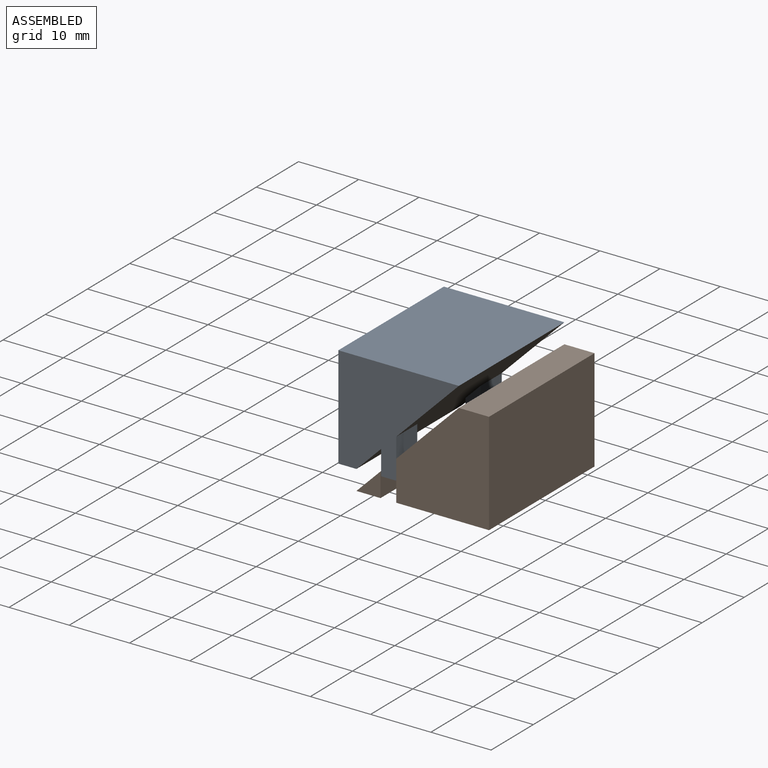
[diagram: assembled view]
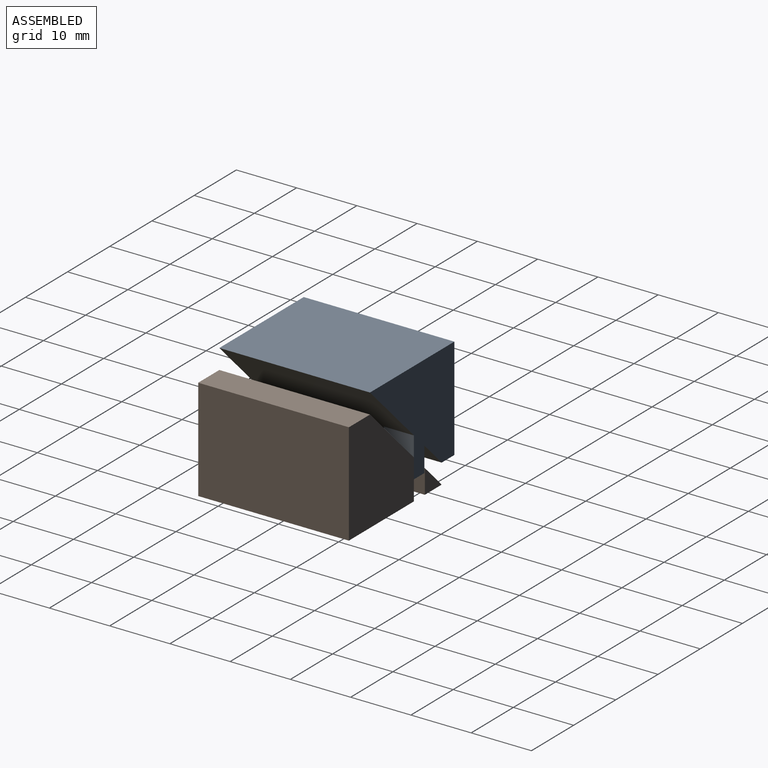
[diagram: assembled view, second angle]
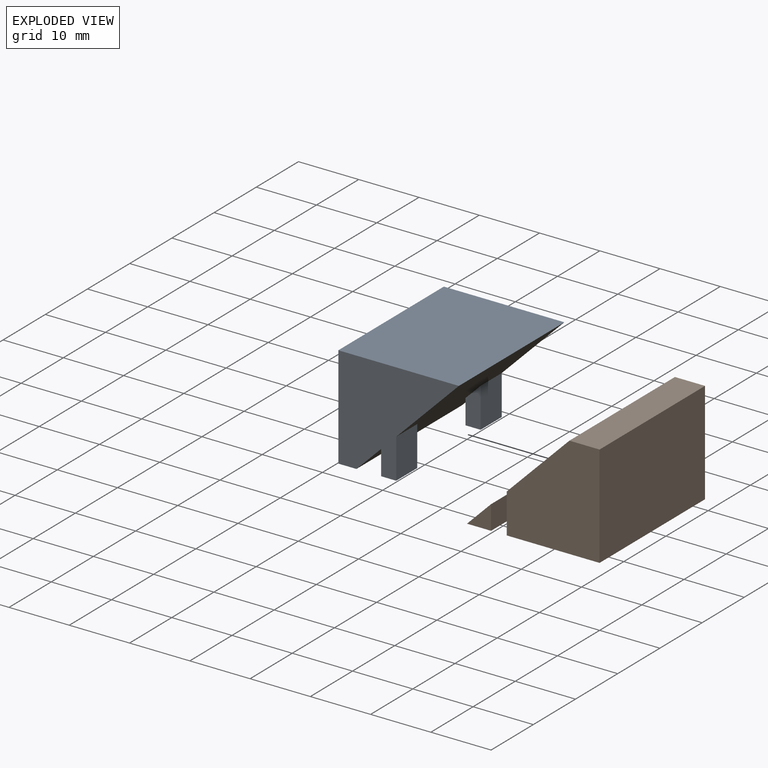
[diagram: exploded view]
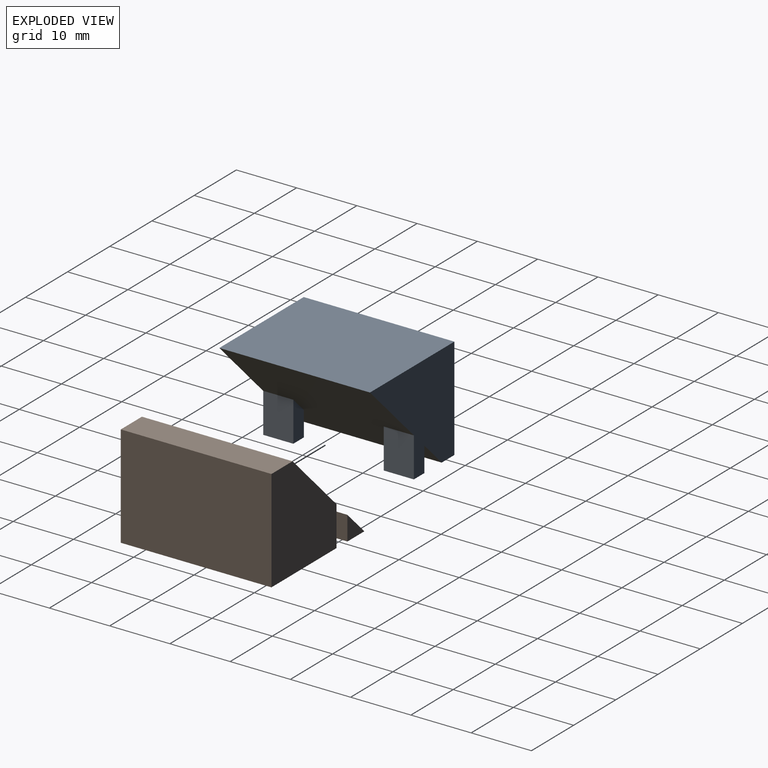
[diagram: exploded view, second angle]
ASSEMBLY  parts=2 mates=2
PART A: 14 faces, bbox 20x25x17 mm
  f0: plane 25x17mm, normal (-0.71,0,0.71), area 565.7mm2, adj f1,f3,f4,f5,f6,f7,f8,f10
  f1: plane 25x20mm, normal (0,0,-1), area 500mm2, adj f0,f2,f4,f5
  f2: plane 25x17mm, normal (1,0,0), area 425mm2, adj f1,f3,f4,f5
  f3: plane 25x3mm, normal (0,0,1), area 75mm2, adj f0,f2,f4,f5
  f4: plane 20x17mm, normal (0,-1,0), area 208.9mm2, adj f0,f1,f2,f3,f10,f12,f13
  f5: plane 20x17mm, normal (0,1,0), area 208.9mm2, adj f0,f1,f2,f3,f6,f7,f9
  f6: plane 5x4.1mm, normal (1,0,0), area 20.5mm2, adj f0,f5,f8,f9
  f7: plane 6.6x5mm, normal (-1,0,0), area 33mm2, adj f0,f5,f8,f9
  f8: plane 6.6x2.5mm, normal (0,-1,0), area 13.4mm2, adj f0,f6,f7,f9
  f9: plane 5x2.5mm, normal (0,0,1), area 12.5mm2, adj f5,f6,f7,f8
  f10: plane 5x4.1mm, normal (1,0,0), area 20.5mm2, adj f0,f4,f11,f13
  f11: plane 6.6x2.5mm, normal (0,1,0), area 13.4mm2, adj f0,f10,f12,f13
  f12: plane 6.6x5mm, normal (-1,0,0), area 33mm2, adj f0,f4,f11,f13
  f13: plane 5x2.5mm, normal (0,0,1), area 12.5mm2, adj f4,f10,f11,f12
PART B: 24 faces, bbox 22x25x17 mm
  f0: plane 4x4mm, normal (0,-1,0), area 8mm2, adj f2,f3,f20
  f1: plane 4x4mm, normal (0,1,0), area 8mm2, adj f2,f3,f21
  f2: plane 25x17mm, normal (-0.71,0,0.71), area 368.3mm2, adj f0,f1,f3,f5,f6,f7,f8,f9
  f3: plane 25x22mm, normal (0,0,-1), area 524mm2, adj f0,f1,f2,f4,f6,f7,f18,f19
  f4: plane 25x17mm, normal (1,0,0), area 425mm2, adj f3,f5,f6,f7
  f5: plane 25x5mm, normal (0,0,1), area 125mm2, adj f2,f4,f6,f7
  f6: plane 17x15.4mm, normal (0,-1,0), area 207.7mm2, adj f2,f3,f4,f5,f18
  f7: plane 17x15.4mm, normal (0,1,0), area 207.7mm2, adj f2,f3,f4,f5,f23
  f8: plane 9.9x9.83mm, normal (-0.5,0.71,-0.5), area 56mm2, adj f2,f9,f15,f16
  f9: plane 9.9x9.83mm, normal (-0.5,-0.71,-0.5), area 56mm2, adj f2,f8,f10,f16
  f10: plane 9.9x9.83mm, normal (0.5,-0.71,0.5), area 56mm2, adj f2,f9,f15,f16
  f11: plane 5.83x5.83mm, normal (0.5,0.71,0.5), area 24mm2, adj f12,f14,f16,f17
  f12: plane 5.83x5.83mm, normal (0.5,-0.71,0.5), area 24mm2, adj f11,f13,f16,f17
  f13: plane 5.83x5.83mm, normal (-0.5,-0.71,-0.5), area 24mm2, adj f12,f14,f16,f17
  f14: plane 5.83x5.83mm, normal (-0.5,0.71,-0.5), area 24mm2, adj f11,f13,f16,f17
  f15: plane 9.9x9.83mm, normal (0.5,0.71,0.5), area 56mm2, adj f2,f8,f10,f16
  f16: plane 19.8x14mm, normal (-0.71,0,0.71), area 160mm2, adj f8,f9,f10,f11,f12,f13,f14,f15
  f17: plane 8.49x6mm, normal (-0.71,0,0.71), area 36mm2, adj f11,f12,f13,f14
  f18: plane 6.6x5mm, normal (-1,0,0), area 33mm2, adj f2,f3,f6,f19
  f19: plane 6.6x2.6mm, normal (0,-1,0), area 13.8mm2, adj f2,f3,f18,f20
  f20: plane 5x4mm, normal (1,0,0), area 20mm2, adj f0,f2,f3,f19
  f21: plane 5x4mm, normal (1,0,0), area 20mm2, adj f1,f2,f3,f22
  f22: plane 6.6x2.6mm, normal (0,1,0), area 13.8mm2, adj f2,f3,f21,f23
  f23: plane 6.6x5mm, normal (-1,0,0), area 33mm2, adj f2,f3,f7,f22
PLACE A rot(axis=(0,1,0),180deg) t=(-35.93,21.68,43.12)mm
PLACE B t=(-18.06,21.68,-13.15)mm
MATE planar A.f12 <-> B.f18  axis (1,0,0) through (-25.43,-0.82,8.45)mm
MATE planar A.f4 <-> B.f6  axis (0,-1,0) through (-28.13,-3.32,18.54)mm
